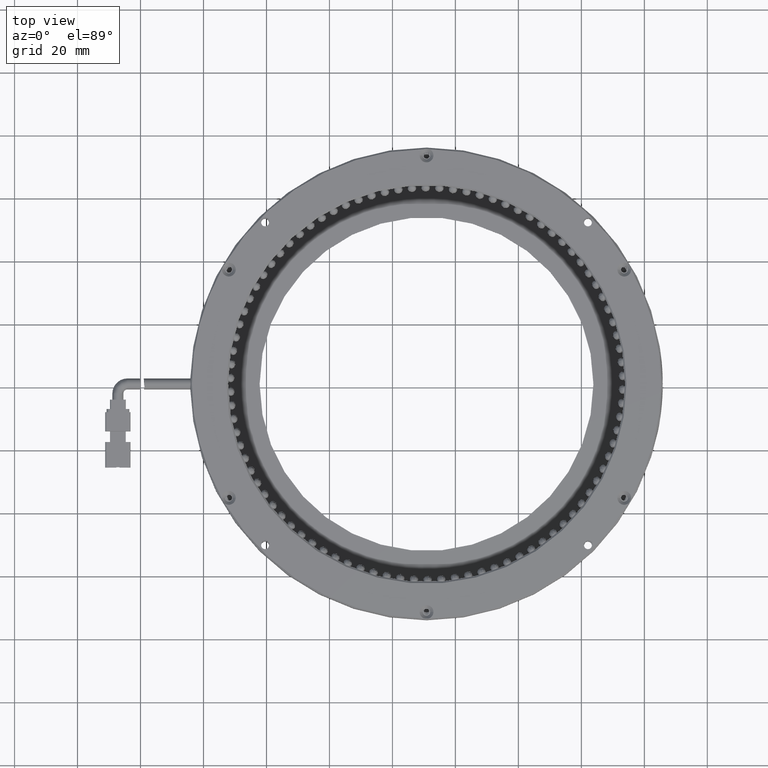
[diagram: clean part render]
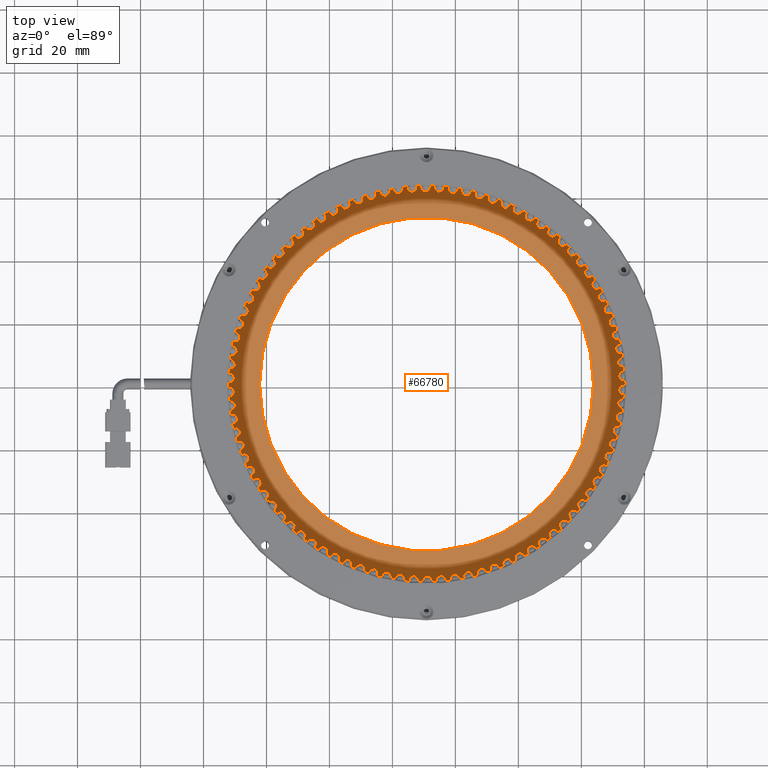
[diagram: same view with one face highlighted and labeled with its STEP entity id]
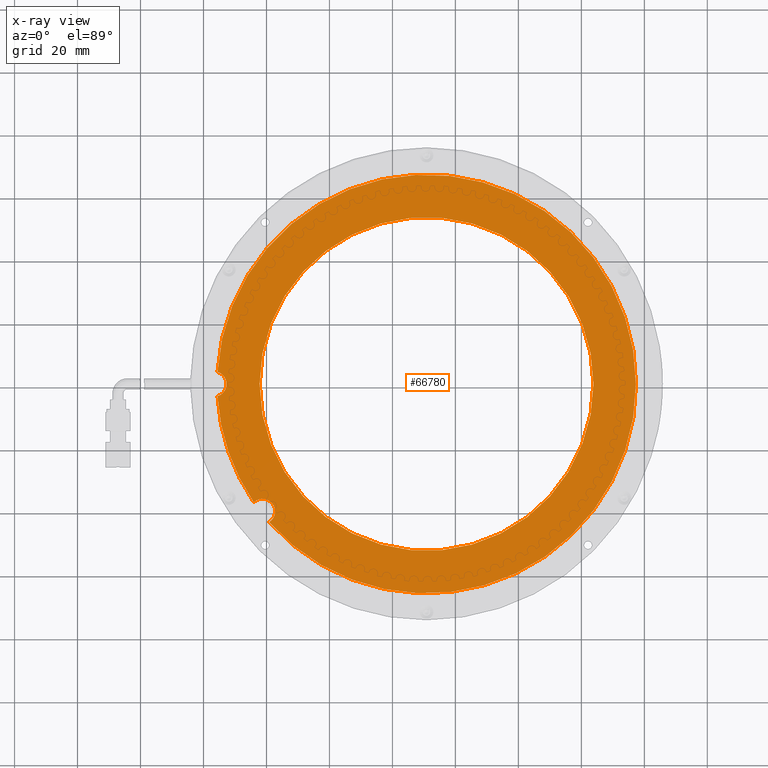
[diagram: x-ray of the same camera — body ghosted, the highlighted face saturated]
A machine part, top view. The second image highlights one B-rep face of the part: STEP entity #66780.
The next image is the same camera in x-ray: the body ghosted, the highlighted face saturated — about 0% of this face is hidden behind the body in this view.
In plain terms, the highlighted planar face has unit normal (0, 0, 1).
Its self-contained STEP definition (entity closure, byte-faithful):
#676 = VERTEX_POINT ( 'NONE', #4167 ) ;
#705 = VERTEX_POINT ( 'NONE', #65306 ) ;
#3606 = DIRECTION ( 'NONE',  ( 1.000000000000000000, 0.0000000000000000000, 0.0000000000000000000 ) ) ;
#4167 = CARTESIAN_POINT ( 'NONE',  ( 63.82239847715735700, 1.095939086294426700, -1.500000000000062800 ) ) ;
#5224 = DIRECTION ( 'NONE',  ( 0.0000000000000000000, 0.0000000000000000000, -1.000000000000000000 ) ) ;
#6395 = EDGE_CURVE ( 'NONE', #69866, #15146, #17750, .T. ) ;
#6547 = AXIS2_PLACEMENT_3D ( 'NONE', #10381, #52945, #16487 ) ;
#6591 = AXIS2_PLACEMENT_3D ( 'NONE', #76433, #39969, #3606 ) ;
#6616 = VERTEX_POINT ( 'NONE', #18402 ) ;
#10202 = EDGE_CURVE ( 'NONE', #59808, #37886, #58731, .T. ) ;
#10321 = ORIENTED_EDGE ( 'NONE', *, *, #26168, .T. ) ;
#10381 = CARTESIAN_POINT ( 'NONE',  ( 10.82239847715735200, 1.095939086294420100, -1.500000000000062800 ) ) ;
#11277 = EDGE_CURVE ( 'NONE', #41665, #705, #71505, .T. ) ;
#12131 = AXIS2_PLACEMENT_3D ( 'NONE', #26244, #68773, #32320 ) ;
#12766 = CARTESIAN_POINT ( 'NONE',  ( -55.56649041173153600, 4.938520523136835600, -1.500000000000062800 ) ) ;
#13592 = EDGE_CURVE ( 'NONE', #676, #6616, #73806, .T. ) ;
#14149 = AXIS2_PLACEMENT_3D ( 'NONE', #15765, #58343, #21926 ) ;
#14340 = AXIS2_PLACEMENT_3D ( 'NONE', #54585, #18168, #60742 ) ;
#14477 = CARTESIAN_POINT ( 'NONE',  ( -39.15671482136050200, -42.77134067771552800, -1.500000000000062800 ) ) ;
#15146 = VERTEX_POINT ( 'NONE', #56262 ) ;
#15765 = CARTESIAN_POINT ( 'NONE',  ( 10.82239847715735200, 1.095939086294420100, -1.500000000000062800 ) ) ;
#16487 = DIRECTION ( 'NONE',  ( 1.000000000000000000, 0.0000000000000000000, 0.0000000000000000000 ) ) ;
#16823 = CARTESIAN_POINT ( 'NONE',  ( -41.26175405580935500, -39.37004536248179000, -1.500000000000062800 ) ) ;
#17296 = CARTESIAN_POINT ( 'NONE',  ( -44.03720466399818900, -36.48961589424188600, -1.500000000000062800 ) ) ;
#17572 = DIRECTION ( 'NONE',  ( -0.0000000000000000000, -0.0000000000000000000, -1.000000000000000000 ) ) ;
#17750 = CIRCLE ( 'NONE', #54944, 4.000000000000010700 ) ;
#18168 = DIRECTION ( 'NONE',  ( -0.0000000000000000000, -0.0000000000000000000, 1.000000000000000000 ) ) ;
#18402 = CARTESIAN_POINT ( 'NONE',  ( -42.17760152284265000, 1.095939086294420100, -1.500000000000062800 ) ) ;
#19805 = CIRCLE ( 'NONE', #6591, 4.000000000000010700 ) ;
#21407 = CARTESIAN_POINT ( 'NONE',  ( -52.67760152284265000, 1.095939086294420100, -1.500000000000062800 ) ) ;
#21926 = DIRECTION ( 'NONE',  ( 1.000000000000000000, 0.0000000000000000000, 0.0000000000000000000 ) ) ;
#22963 = DIRECTION ( 'NONE',  ( 1.000000000000000000, 1.734723475976802600E-015, 0.0000000000000000000 ) ) ;
#23172 = EDGE_CURVE ( 'NONE', #37886, #69866, #65379, .T. ) ;
#23565 = ORIENTED_EDGE ( 'NONE', *, *, #43809, .T. ) ;
#25062 = CARTESIAN_POINT ( 'NONE',  ( 10.82239847715735200, 1.095939086294420100, -1.500000000000062800 ) ) ;
#25483 = ORIENTED_EDGE ( 'NONE', *, *, #58120, .T. ) ;
#26168 = EDGE_CURVE ( 'NONE', #705, #55784, #64594, .T. ) ;
#26244 = CARTESIAN_POINT ( 'NONE',  ( 10.82239847715735200, 1.095939086294420100, -1.500000000000062800 ) ) ;
#27667 = ORIENTED_EDGE ( 'NONE', *, *, #6395, .T. ) ;
#31152 = DIRECTION ( 'NONE',  ( -1.000000000000000000, 0.0000000000000000000, 0.0000000000000000000 ) ) ;
#31500 = CARTESIAN_POINT ( 'NONE',  ( -56.67760152284265000, 1.095939086294420100, -1.500000000000062800 ) ) ;
#32064 = CIRCLE ( 'NONE', #48860, 53.00000000000000700 ) ;
#32320 = DIRECTION ( 'NONE',  ( 1.000000000000000000, 0.0000000000000000000, -0.0000000000000000000 ) ) ;
#33577 = ORIENTED_EDGE ( 'NONE', *, *, #13592, .T. ) ;
#35415 = CIRCLE ( 'NONE', #36804, 4.000000000000003600 ) ;
#36804 = AXIS2_PLACEMENT_3D ( 'NONE', #41606, #5224, #47783 ) ;
#37620 = DIRECTION ( 'NONE',  ( 1.000000000000000000, 0.0000000000000000000, 0.0000000000000000000 ) ) ;
#37886 = VERTEX_POINT ( 'NONE', #41437 ) ;
#39313 = EDGE_LOOP ( 'NONE', ( #56682, #33577 ) ) ;
#39433 = ORIENTED_EDGE ( 'NONE', *, *, #10202, .T. ) ;
#39969 = DIRECTION ( 'NONE',  ( 0.0000000000000000000, 0.0000000000000000000, -1.000000000000000000 ) ) ;
#40006 = FACE_OUTER_BOUND ( 'NONE', #59742, .T. ) ;
#41437 = CARTESIAN_POINT ( 'NONE',  ( -55.56649041173153600, -2.746642350547932000, -1.500000000000062800 ) ) ;
#41606 = CARTESIAN_POINT ( 'NONE',  ( -56.67760152284265000, 1.095939086294420100, -1.500000000000062800 ) ) ;
#41665 = VERTEX_POINT ( 'NONE', #14477 ) ;
#43809 = EDGE_CURVE ( 'NONE', #55784, #59808, #35415, .T. ) ;
#43966 = ORIENTED_EDGE ( 'NONE', *, *, #11277, .T. ) ;
#44355 = PLANE ( 'NONE',  #12131 ) ;
#47783 = DIRECTION ( 'NONE',  ( 1.000000000000000000, 3.577867169202161500E-015, 0.0000000000000000000 ) ) ;
#48860 = AXIS2_PLACEMENT_3D ( 'NONE', #25062, #67604, #31152 ) ;
#49840 = AXIS2_PLACEMENT_3D ( 'NONE', #54030, #17572, #60176 ) ;
#52945 = DIRECTION ( 'NONE',  ( -0.0000000000000000000, -0.0000000000000000000, 1.000000000000000000 ) ) ;
#54030 = CARTESIAN_POINT ( 'NONE',  ( 10.82239847715735200, 1.095939086294420100, -1.500000000000062800 ) ) ;
#54585 = CARTESIAN_POINT ( 'NONE',  ( 10.82239847715735200, 1.095939086294420100, -1.500000000000062800 ) ) ;
#54944 = AXIS2_PLACEMENT_3D ( 'NONE', #16823, #59388, #22963 ) ;
#55784 = VERTEX_POINT ( 'NONE', #12766 ) ;
#56262 = CARTESIAN_POINT ( 'NONE',  ( -37.26175405580934100, -39.37004536248179000, -1.500000000000062800 ) ) ;
#56326 = AXIS2_PLACEMENT_3D ( 'NONE', #31500, #74063, #37620 ) ;
#56682 = ORIENTED_EDGE ( 'NONE', *, *, #62536, .T. ) ;
#58120 = EDGE_CURVE ( 'NONE', #15146, #41665, #19805, .T. ) ;
#58343 = DIRECTION ( 'NONE',  ( -0.0000000000000000000, -0.0000000000000000000, 1.000000000000000000 ) ) ;
#58731 = CIRCLE ( 'NONE', #56326, 4.000000000000003600 ) ;
#59388 = DIRECTION ( 'NONE',  ( 0.0000000000000000000, 0.0000000000000000000, -1.000000000000000000 ) ) ;
#59742 = EDGE_LOOP ( 'NONE', ( #78816, #27667, #25483, #43966, #10321, #23565, #39433 ) ) ;
#59808 = VERTEX_POINT ( 'NONE', #21407 ) ;
#60176 = DIRECTION ( 'NONE',  ( -1.000000000000000000, 0.0000000000000000000, 0.0000000000000000000 ) ) ;
#60742 = DIRECTION ( 'NONE',  ( 1.000000000000000000, 0.0000000000000000000, 0.0000000000000000000 ) ) ;
#62536 = EDGE_CURVE ( 'NONE', #6616, #676, #32064, .T. ) ;
#64594 = CIRCLE ( 'NONE', #6547, 66.50000000000000000 ) ;
#64788 = FACE_BOUND ( 'NONE', #39313, .T. ) ;
#65306 = CARTESIAN_POINT ( 'NONE',  ( 77.32239847715735000, 1.095939086294420100, -1.500000000000062800 ) ) ;
#65379 = CIRCLE ( 'NONE', #14340, 66.50000000000000000 ) ;
#66780 = ADVANCED_FACE ( 'NONE', ( #64788, #40006 ), #44355, .T. ) ;
#67604 = DIRECTION ( 'NONE',  ( -0.0000000000000000000, -0.0000000000000000000, -1.000000000000000000 ) ) ;
#68773 = DIRECTION ( 'NONE',  ( 0.0000000000000000000, 0.0000000000000000000, 1.000000000000000000 ) ) ;
#69866 = VERTEX_POINT ( 'NONE', #17296 ) ;
#71505 = CIRCLE ( 'NONE', #14149, 66.50000000000000000 ) ;
#73806 = CIRCLE ( 'NONE', #49840, 53.00000000000000700 ) ;
#74063 = DIRECTION ( 'NONE',  ( 0.0000000000000000000, 0.0000000000000000000, -1.000000000000000000 ) ) ;
#76433 = CARTESIAN_POINT ( 'NONE',  ( -41.26175405580935500, -39.37004536248179000, -1.500000000000062800 ) ) ;
#78816 = ORIENTED_EDGE ( 'NONE', *, *, #23172, .T. ) ;